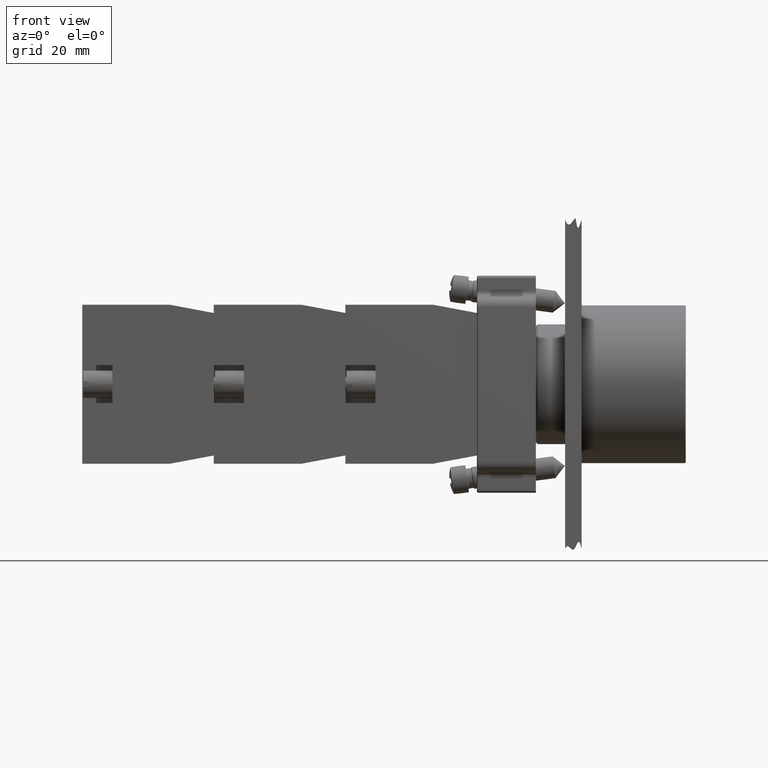
[diagram: clean part render]
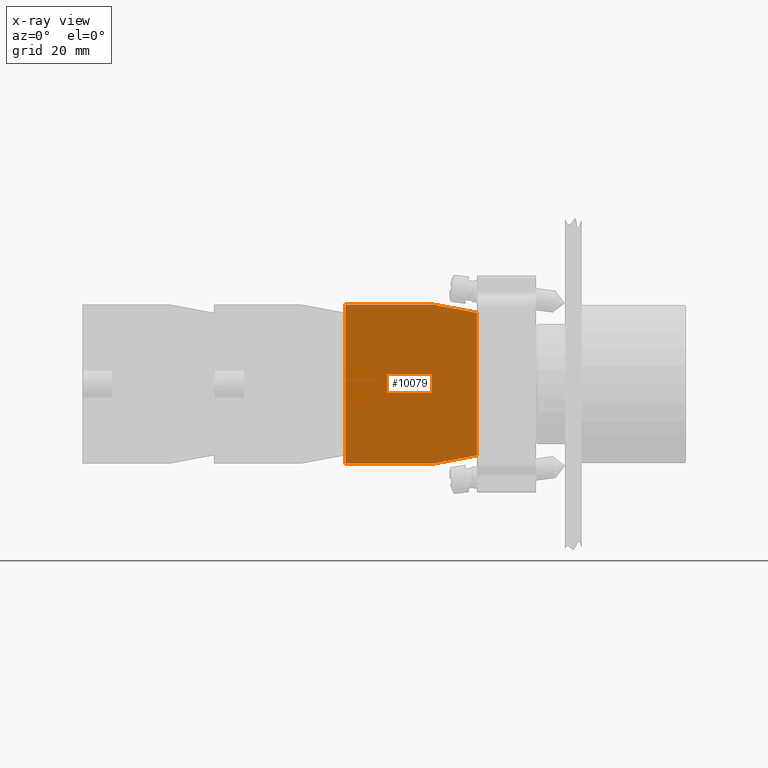
[diagram: x-ray — body ghosted, one internal face saturated and labeled with its STEP entity id]
A machine part, front view, then the same camera in x-ray: the body is ghosted and one INTERNAL B-rep face — a face not visible from any outside direction — is saturated and labeled: STEP entity #10079.
In plain terms, the highlighted planar face has unit normal (0, -1, 0).
Its self-contained STEP definition (entity closure, byte-faithful):
#8384=CARTESIAN_POINT('',(-44.936741828918471,23.797073323279623,0.0));
#8385=VERTEX_POINT('',#8384);
#8392=CARTESIAN_POINT('',(-44.936741828918457,7.797073323279626,0.0));
#8393=VERTEX_POINT('',#8392);
#8394=CARTESIAN_POINT('',(-44.936741828918457,7.797073323279626,0.0));
#8395=DIRECTION('',(0.0,1.0,0.0));
#8396=VECTOR('',#8395,15.999999999999996);
#8397=LINE('',#8394,#8396);
#8398=EDGE_CURVE('',#8393,#8385,#8397,.T.);
#8575=CARTESIAN_POINT('',(-43.436741828918457,-0.202926676720380,0.0));
#8576=VERTEX_POINT('',#8575);
#8583=CARTESIAN_POINT('',(-17.436741828918457,-0.202926676720377,0.0));
#8584=VERTEX_POINT('',#8583);
#8585=CARTESIAN_POINT('',(-17.436741828918457,-0.202926676720377,0.0));
#8586=DIRECTION('',(-1.0,0.0,0.0));
#8587=VECTOR('',#8586,26.0);
#8588=LINE('',#8585,#8587);
#8589=EDGE_CURVE('',#8584,#8576,#8588,.T.);
#9933=CARTESIAN_POINT('',(-15.936741828918466,23.797073323279626,0.0));
#9934=VERTEX_POINT('',#9933);
#9941=CARTESIAN_POINT('',(-44.936741828918471,23.797073323279623,0.0));
#9942=DIRECTION('',(1.0,0.0,0.0));
#9943=VECTOR('',#9942,29.000000000000007);
#9944=LINE('',#9941,#9943);
#9945=EDGE_CURVE('',#8385,#9934,#9944,.T.);
#9981=CARTESIAN_POINT('',(-15.936741828918466,7.797073323279626,0.0));
#9982=VERTEX_POINT('',#9981);
#9989=CARTESIAN_POINT('',(-15.936741828918466,23.797073323279626,0.0));
#9990=DIRECTION('',(0.0,-1.0,0.0));
#9991=VECTOR('',#9990,16.0);
#9992=LINE('',#9989,#9991);
#9993=EDGE_CURVE('',#9934,#9982,#9992,.T.);
#10021=CARTESIAN_POINT('',(-15.936741828918466,7.797073323279626,0.0));
#10022=DIRECTION('',(-0.184288535050184,-0.982872186934322,0.0));
#10023=VECTOR('',#10022,8.139410298049855);
#10024=LINE('',#10021,#10023);
#10025=EDGE_CURVE('',#9982,#8584,#10024,.T.);
#10038=CARTESIAN_POINT('',(-43.436741828918457,-0.202926676720380,0.0));
#10039=DIRECTION('',(-0.184288535050185,0.982872186934322,0.0));
#10040=VECTOR('',#10039,8.139410298049860);
#10041=LINE('',#10038,#10040);
#10042=EDGE_CURVE('',#8576,#8393,#10041,.T.);
#10066=CARTESIAN_POINT('',(-30.436741828918464,12.124046801833057,0.0));
#10067=DIRECTION('',(0.0,0.0,1.0));
#10068=DIRECTION('',(1.0,0.0,0.0));
#10069=AXIS2_PLACEMENT_3D('',#10066,#10067,#10068);
#10070=PLANE('',#10069);
#10071=ORIENTED_EDGE('',*,*,#9945,.T.);
#10072=ORIENTED_EDGE('',*,*,#9993,.T.);
#10073=ORIENTED_EDGE('',*,*,#10025,.T.);
#10074=ORIENTED_EDGE('',*,*,#8589,.T.);
#10075=ORIENTED_EDGE('',*,*,#10042,.T.);
#10076=ORIENTED_EDGE('',*,*,#8398,.T.);
#10077=EDGE_LOOP('',(#10071,#10072,#10073,#10074,#10075,#10076));
#10078=FACE_OUTER_BOUND('',#10077,.T.);
#10079=ADVANCED_FACE('',(#10078),#10070,.F.);